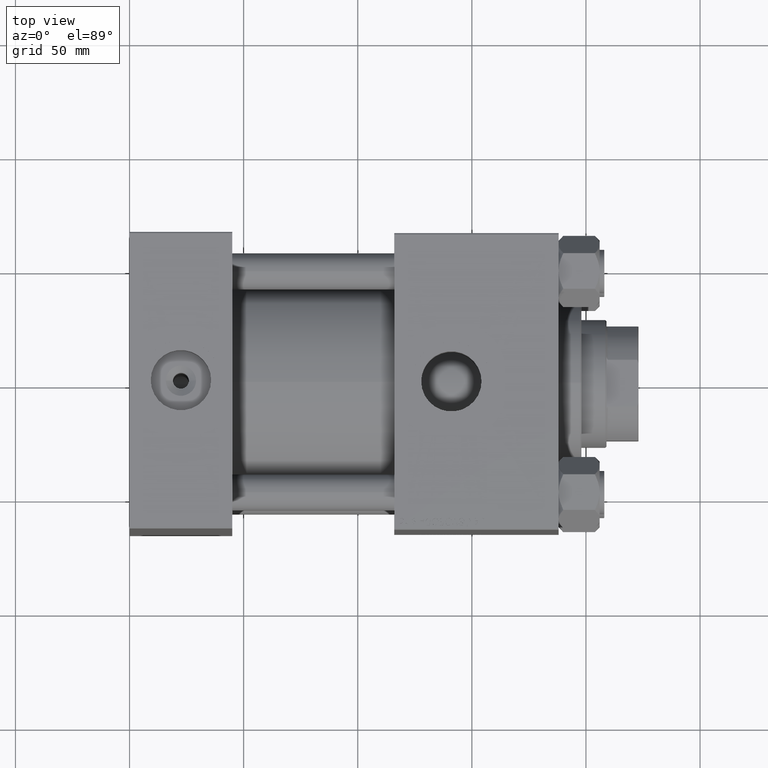
[diagram: clean part render]
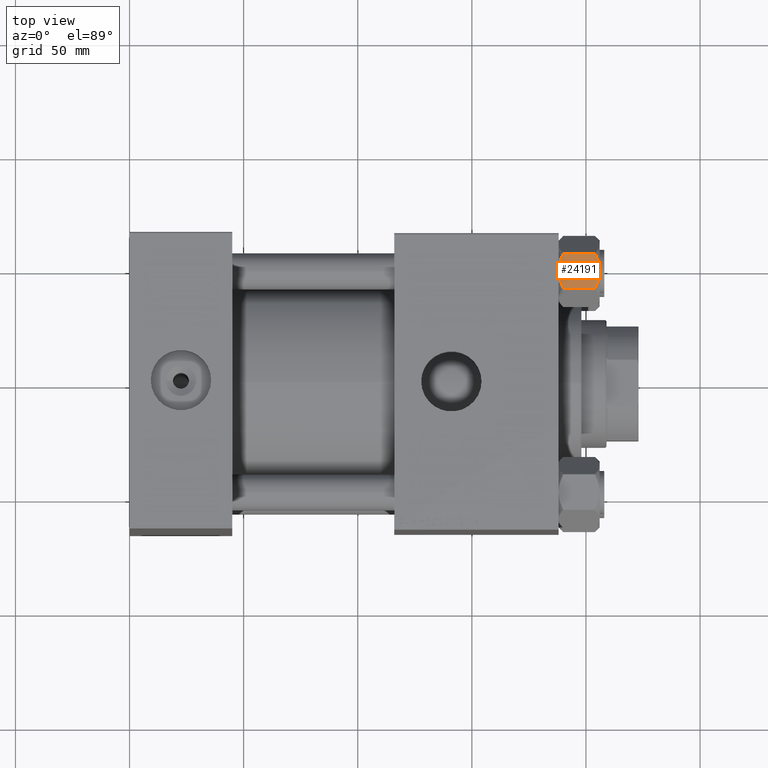
[diagram: same view with one face highlighted and labeled with its STEP entity id]
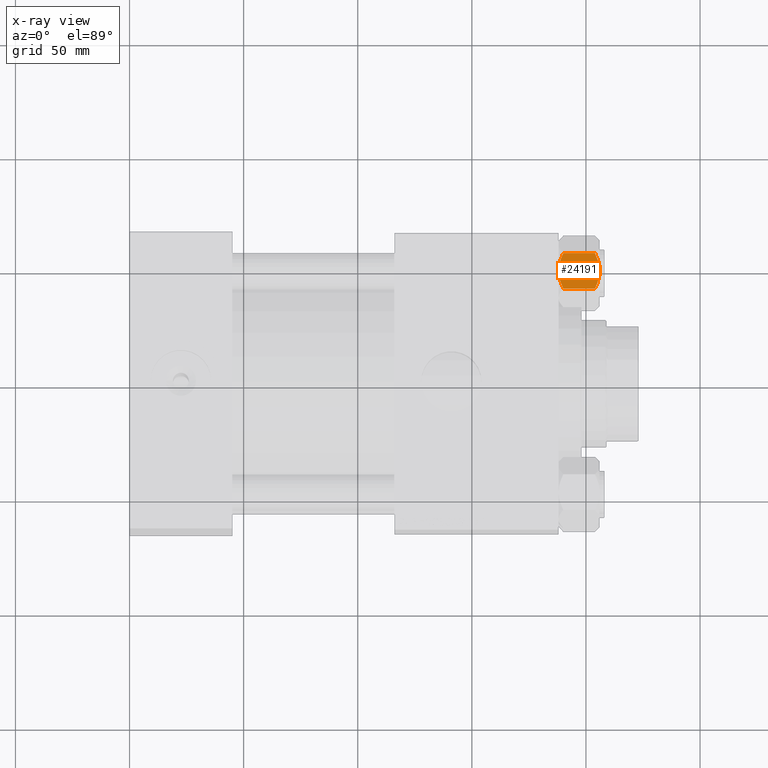
[diagram: x-ray of the same camera — body ghosted, the highlighted face saturated]
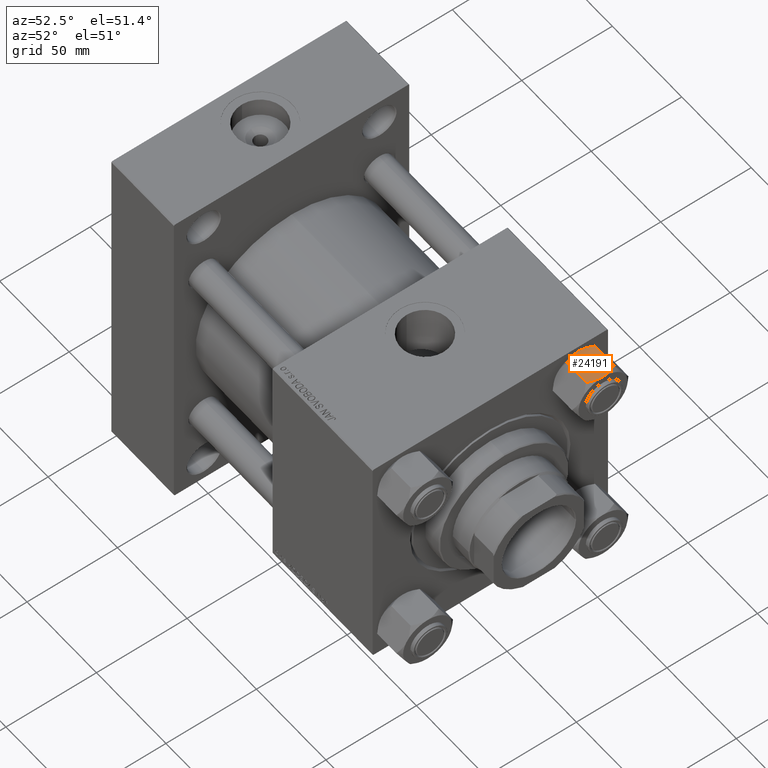
[diagram: same view with one face highlighted and labeled with its STEP entity id]
A machine part, top view. The second image highlights one B-rep face of the part: STEP entity #24191.
The next image is the same camera in x-ray: the body ghosted, the highlighted face saturated — about 0% of this face is hidden behind the body in this view.
A second angle (auxiliary view) of the same face is appended — the face is thin or edge-on in the first view.
In plain terms, the highlighted planar face has unit normal (0, 0, -1).
Its self-contained STEP definition (entity closure, byte-faithful):
#293 = B_SPLINE_CURVE_WITH_KNOTS ( 'NONE', 3,
 ( #41286, #5808, #29281, #45631, #25695, #37719, #10643, #2978 ),
 .UNSPECIFIED., .F., .F.,
 ( 4, 2, 2, 4 ),
 ( 0.01980594295952730829, 0.02179054093496184119, 0.02377513891039637409, 0.02774433486126544682 ),
 .UNSPECIFIED. ) ;
#1377 = B_SPLINE_CURVE_WITH_KNOTS ( 'NONE', 3,
 ( #47648, #20556, #47903, #9570, #31799, #47402, #12396, #27958, #35883, #20306, #12646, #28209 ),
 .UNSPECIFIED., .F., .F.,
 ( 4, 2, 2, 2, 2, 4 ),
 ( 0.02774433486126544682, 0.02873404020403548184, 0.02972374554680551340, 0.03170315623234558344, 0.03368256691788565349, 0.03566197760342572354 ),
 .UNSPECIFIED. ) ;
#1450 = CARTESIAN_POINT ( 'NONE',  ( -7.809999999999996945, 13.52731680711293727, -18.00000000000000000 ) ) ;
#2840 = CARTESIAN_POINT ( 'NONE',  ( 7.810000000000000497, 13.52731680711293905, -16.00000000000000000 ) ) ;
#2978 = CARTESIAN_POINT ( 'NONE',  ( -1.502314598737160017E-15, 13.52731680711293727, -18.00000000000000000 ) ) ;
#3164 = CARTESIAN_POINT ( 'NONE',  ( 1.335584685993407295, 13.52731680711293372, -9.301551138115220827E-15 ) ) ;
#3604 = LINE ( 'NONE', #30151, #18298 ) ;
#3687 = CARTESIAN_POINT ( 'NONE',  ( -7.809999999999996945, 13.52731680711293727, -1.999999999999998224 ) ) ;
#5662 = VERTEX_POINT ( 'NONE', #12446 ) ;
#5808 = CARTESIAN_POINT ( 'NONE',  ( -7.030888348548044675, 13.52731680711294082, -16.29066211644970252 ) ) ;
#7865 = ORIENTED_EDGE ( 'NONE', *, *, #31322, .F. ) ;
#8100 = EDGE_CURVE ( 'NONE', #48941, #9569, #36718, .T. ) ;
#8488 = DIRECTION ( 'NONE',  ( 1.000000000000000000, 1.110578409716265846E-16, 0.000000000000000000 ) ) ;
#9417 = VERTEX_POINT ( 'NONE', #18369 ) ;
#9569 = VERTEX_POINT ( 'NONE', #32136 ) ;
#9570 = CARTESIAN_POINT ( 'NONE',  ( 1.333889873825127248, 13.52731680711293549, -17.93843358996559090 ) ) ;
#9946 = B_SPLINE_CURVE_WITH_KNOTS ( 'NONE', 3,
 ( #23061, #30728, #23318, #15921, #38929, #19494, #3164, #26640 ),
 .UNSPECIFIED., .F., .F.,
 ( 4, 2, 2, 4 ),
 ( 0.01980594295952731523, 0.02179054093496185160, 0.02377513891039638796, 0.02774433486126545723 ),
 .UNSPECIFIED. ) ;
#10131 = CARTESIAN_POINT ( 'NONE',  ( -7.622943475354626131, 13.52731680711293727, -2.000000000000000000 ) ) ;
#10643 = CARTESIAN_POINT ( 'NONE',  ( -1.335584685993412180, 13.52731680711293549, -17.99999999999998224 ) ) ;
#12396 = CARTESIAN_POINT ( 'NONE',  ( 3.287826776903140402, 13.52731680711293905, -17.61954155462465721 ) ) ;
#12446 = CARTESIAN_POINT ( 'NONE',  ( -7.809999999999996945, 13.52731680711293727, -16.00000000000000000 ) ) ;
#12478 = ORIENTED_EDGE ( 'NONE', *, *, #40433, .F. ) ;
#12646 = CARTESIAN_POINT ( 'NONE',  ( 7.030203932307562908, 13.52731680711294260, -16.29099812210860065 ) ) ;
#12815 = CARTESIAN_POINT ( 'NONE',  ( -7.809999999999996945, 13.52731680711293727, -16.00000000000000000 ) ) ;
#13265 = VERTEX_POINT ( 'NONE', #25869 ) ;
#13935 = DIRECTION ( 'NONE',  ( 1.000000000000000000, 1.110578409716265846E-16, 0.000000000000000000 ) ) ;
#14215 = EDGE_CURVE ( 'NONE', #13265, #15952, #1377, .T. ) ;
#15921 = CARTESIAN_POINT ( 'NONE',  ( 5.189513245496312877, 13.52731680711294260, -0.9501108431732627757 ) ) ;
#15952 = VERTEX_POINT ( 'NONE', #37637 ) ;
#16038 = AXIS2_PLACEMENT_3D ( 'NONE', #1450, #48932, #13935 ) ;
#18298 = VECTOR ( 'NONE', #26831, 1000.000000000000000 ) ;
#18369 = CARTESIAN_POINT ( 'NONE',  ( 7.622943475354622578, 13.52731680711293727, -2.000000000000000000 ) ) ;
#18568 = EDGE_CURVE ( 'NONE', #9569, #9417, #23084, .T. ) ;
#18653 = ORIENTED_EDGE ( 'NONE', *, *, #8100, .F. ) ;
#19255 = DIRECTION ( 'NONE',  ( -1.000000000000000000, -1.110578409716265846E-16, 0.000000000000000000 ) ) ;
#19494 = CARTESIAN_POINT ( 'NONE',  ( 2.638177715023099168, 13.52731680711294260, -0.2001540676698935206 ) ) ;
#20306 = CARTESIAN_POINT ( 'NONE',  ( 6.422751913021802039, 13.52731680711294260, -16.56349088907410660 ) ) ;
#20556 = CARTESIAN_POINT ( 'NONE',  ( 0.3330234424833806162, 13.52731680711293905, -17.99999999999998579 ) ) ;
#21094 = FACE_OUTER_BOUND ( 'NONE', #26575, .T. ) ;
#21602 = CARTESIAN_POINT ( 'NONE',  ( -7.809999999999996945, 13.52731680711293727, -1.999999999999998224 ) ) ;
#21858 = CARTESIAN_POINT ( 'NONE',  ( -0.6693083573771219097, 13.52731680711293727, -0.01249333081109054930 ) ) ;
#21961 = LINE ( 'NONE', #41387, #42174 ) ;
#22617 = VERTEX_POINT ( 'NONE', #25232 ) ;
#22987 = DIRECTION ( 'NONE',  ( -1.000000000000000000, -1.110578409716265846E-16, 0.000000000000000000 ) ) ;
#23052 = CARTESIAN_POINT ( 'NONE',  ( -0.3330234424833855567, 13.52731680711294082, -9.590671717444693935E-15 ) ) ;
#23061 = CARTESIAN_POINT ( 'NONE',  ( 7.622943475354622578, 13.52731680711293727, -2.000000000000000000 ) ) ;
#23084 = LINE ( 'NONE', #3687, #37989 ) ;
#23318 = CARTESIAN_POINT ( 'NONE',  ( 6.427364677720451169, 13.52731680711293727, -1.438506937155140886 ) ) ;
#23408 = VERTEX_POINT ( 'NONE', #27171 ) ;
#24191 = ADVANCED_FACE ( 'NONE', ( #21094 ), #36926, .F. ) ;
#25190 = CARTESIAN_POINT ( 'NONE',  ( -1.333889873825132577, 13.52731680711293549, -0.06156641003440275345 ) ) ;
#25232 = CARTESIAN_POINT ( 'NONE',  ( -7.622943475354626131, 13.52731680711293727, -16.00000000000000000 ) ) ;
#25695 = CARTESIAN_POINT ( 'NONE',  ( -4.553769687922292420, 13.52731680711293905, -17.26727080048547691 ) ) ;
#25869 = CARTESIAN_POINT ( 'NONE',  ( -1.502314598737160017E-15, 13.52731680711293727, -18.00000000000000000 ) ) ;
#26575 = EDGE_LOOP ( 'NONE', ( #39991, #33169, #7865, #29524, #36551, #43990, #18653, #12478, #42942, #37248 ) ) ;
#26640 = CARTESIAN_POINT ( 'NONE',  ( -1.502314598737160017E-15, 13.52731680711293727, 0.000000000000000000 ) ) ;
#26831 = DIRECTION ( 'NONE',  ( 1.000000000000000000, 1.110578409716265846E-16, 0.000000000000000000 ) ) ;
#26883 = CARTESIAN_POINT ( 'NONE',  ( -4.557734399832406247, 13.52731680711293727, -0.7341470174115212188 ) ) ;
#27171 = CARTESIAN_POINT ( 'NONE',  ( -7.622943475354626131, 13.52731680711293727, -2.000000000000000000 ) ) ;
#27958 = CARTESIAN_POINT ( 'NONE',  ( 4.557734399832398253, 13.52731680711293905, -17.26585298258848056 ) ) ;
#28209 = CARTESIAN_POINT ( 'NONE',  ( 7.622943475354622578, 13.52731680711293727, -16.00000000000000000 ) ) ;
#29018 = CARTESIAN_POINT ( 'NONE',  ( -3.287826776903149284, 13.52731680711293727, -0.3804584453753455109 ) ) ;
#29281 = CARTESIAN_POINT ( 'NONE',  ( -6.427364677720452946, 13.52731680711293905, -16.56149306284485334 ) ) ;
#29343 = VERTEX_POINT ( 'NONE', #21602 ) ;
#29522 = CARTESIAN_POINT ( 'NONE',  ( -2.644243758052984727, 13.52731680711293194, -0.2408281198024062875 ) ) ;
#29524 = ORIENTED_EDGE ( 'NONE', *, *, #39373, .F. ) ;
#30151 = CARTESIAN_POINT ( 'NONE',  ( -7.809999999999996945, 13.52731680711293727, -16.00000000000000000 ) ) ;
#30174 = B_SPLINE_CURVE_WITH_KNOTS ( 'NONE', 3,
 ( #49203, #23052, #21858, #25190, #37455, #29522, #29018, #26883, #44871, #45122, #30460, #10131 ),
 .UNSPECIFIED., .F., .F.,
 ( 4, 2, 2, 2, 2, 4 ),
 ( 0.02774433486126545723, 0.02873404020403549225, 0.02972374554680552727, 0.03170315623234559732, 0.03368256691788566737, 0.03566197760342573742 ),
 .UNSPECIFIED. ) ;
#30460 = CARTESIAN_POINT ( 'NONE',  ( -7.030203932307568238, 13.52731680711293905, -1.709001877891396015 ) ) ;
#30728 = CARTESIAN_POINT ( 'NONE',  ( 7.030888348548042899, 13.52731680711293905, -1.709337883550297477 ) ) ;
#30861 = EDGE_CURVE ( 'NONE', #5662, #22617, #3604, .T. ) ;
#31322 = EDGE_CURVE ( 'NONE', #23408, #29343, #38848, .T. ) ;
#31799 = CARTESIAN_POINT ( 'NONE',  ( 1.663410456966167184, 13.52731680711293905, -17.90195050864299375 ) ) ;
#32136 = CARTESIAN_POINT ( 'NONE',  ( 7.810000000000000497, 13.52731680711293905, -1.999999999999998224 ) ) ;
#32385 = DIRECTION ( 'NONE',  ( -0.000000000000000000, -0.000000000000000000, 1.000000000000000000 ) ) ;
#32816 = EDGE_CURVE ( 'NONE', #22617, #13265, #293, .T. ) ;
#33169 = ORIENTED_EDGE ( 'NONE', *, *, #41291, .T. ) ;
#34054 = CARTESIAN_POINT ( 'NONE',  ( -1.502314598737160017E-15, 13.52731680711293727, 0.000000000000000000 ) ) ;
#34649 = VERTEX_POINT ( 'NONE', #34054 ) ;
#35883 = CARTESIAN_POINT ( 'NONE',  ( 5.184073258379385152, 13.52731680711294260, -17.05185620934991064 ) ) ;
#36551 = ORIENTED_EDGE ( 'NONE', *, *, #45926, .F. ) ;
#36718 = LINE ( 'NONE', #48225, #36930 ) ;
#36926 = PLANE ( 'NONE',  #16038 ) ;
#36930 = VECTOR ( 'NONE', #32385, 1000.000000000000000 ) ;
#37248 = ORIENTED_EDGE ( 'NONE', *, *, #32816, .F. ) ;
#37455 = CARTESIAN_POINT ( 'NONE',  ( -1.663410456966171624, 13.52731680711293727, -0.09804949135699883578 ) ) ;
#37637 = CARTESIAN_POINT ( 'NONE',  ( 7.622943475354622578, 13.52731680711293727, -16.00000000000000000 ) ) ;
#37719 = CARTESIAN_POINT ( 'NONE',  ( -2.638177715023100056, 13.52731680711293905, -17.79984593233010770 ) ) ;
#37989 = VECTOR ( 'NONE', #19255, 1000.000000000000000 ) ;
#38848 = LINE ( 'NONE', #46258, #39538 ) ;
#38929 = CARTESIAN_POINT ( 'NONE',  ( 4.553769687922293308, 13.52731680711294082, -0.7327291995145223114 ) ) ;
#39373 = EDGE_CURVE ( 'NONE', #34649, #23408, #30174, .T. ) ;
#39538 = VECTOR ( 'NONE', #22987, 1000.000000000000000 ) ;
#39991 = ORIENTED_EDGE ( 'NONE', *, *, #30861, .F. ) ;
#40433 = EDGE_CURVE ( 'NONE', #15952, #48941, #43978, .T. ) ;
#41286 = CARTESIAN_POINT ( 'NONE',  ( -7.622943475354626131, 13.52731680711293727, -16.00000000000000000 ) ) ;
#41291 = EDGE_CURVE ( 'NONE', #5662, #29343, #21961, .T. ) ;
#41387 = CARTESIAN_POINT ( 'NONE',  ( -7.809999999999996945, 13.52731680711293727, -18.00000000000000000 ) ) ;
#42174 = VECTOR ( 'NONE', #49057, 1000.000000000000000 ) ;
#42942 = ORIENTED_EDGE ( 'NONE', *, *, #14215, .F. ) ;
#43978 = LINE ( 'NONE', #12815, #48705 ) ;
#43990 = ORIENTED_EDGE ( 'NONE', *, *, #18568, .F. ) ;
#44871 = CARTESIAN_POINT ( 'NONE',  ( -5.184073258379393145, 13.52731680711294082, -0.9481437906500895796 ) ) ;
#45122 = CARTESIAN_POINT ( 'NONE',  ( -6.422751913021810033, 13.52731680711293905, -1.436509110925900723 ) ) ;
#45631 = CARTESIAN_POINT ( 'NONE',  ( -5.189513245496315541, 13.52731680711293727, -17.04988915682673678 ) ) ;
#45926 = EDGE_CURVE ( 'NONE', #9417, #34649, #9946, .T. ) ;
#46258 = CARTESIAN_POINT ( 'NONE',  ( -7.809999999999996945, 13.52731680711293727, -1.999999999999998224 ) ) ;
#47402 = CARTESIAN_POINT ( 'NONE',  ( 2.644243758052981175, 13.52731680711294082, -17.75917188019759507 ) ) ;
#47648 = CARTESIAN_POINT ( 'NONE',  ( -1.502314598737160017E-15, 13.52731680711293727, -18.00000000000000000 ) ) ;
#47903 = CARTESIAN_POINT ( 'NONE',  ( 0.6693083573771171357, 13.52731680711294082, -17.98750666918890673 ) ) ;
#48225 = CARTESIAN_POINT ( 'NONE',  ( 7.810000000000001386, 13.52731680711293905, -18.00000000000000000 ) ) ;
#48705 = VECTOR ( 'NONE', #8488, 1000.000000000000000 ) ;
#48932 = DIRECTION ( 'NONE',  ( 1.110578409716265846E-16, -1.000000000000000000, 0.000000000000000000 ) ) ;
#48941 = VERTEX_POINT ( 'NONE', #2840 ) ;
#49057 = DIRECTION ( 'NONE',  ( -0.000000000000000000, -0.000000000000000000, 1.000000000000000000 ) ) ;
#49203 = CARTESIAN_POINT ( 'NONE',  ( -1.502314598737160017E-15, 13.52731680711293727, 0.000000000000000000 ) ) ;